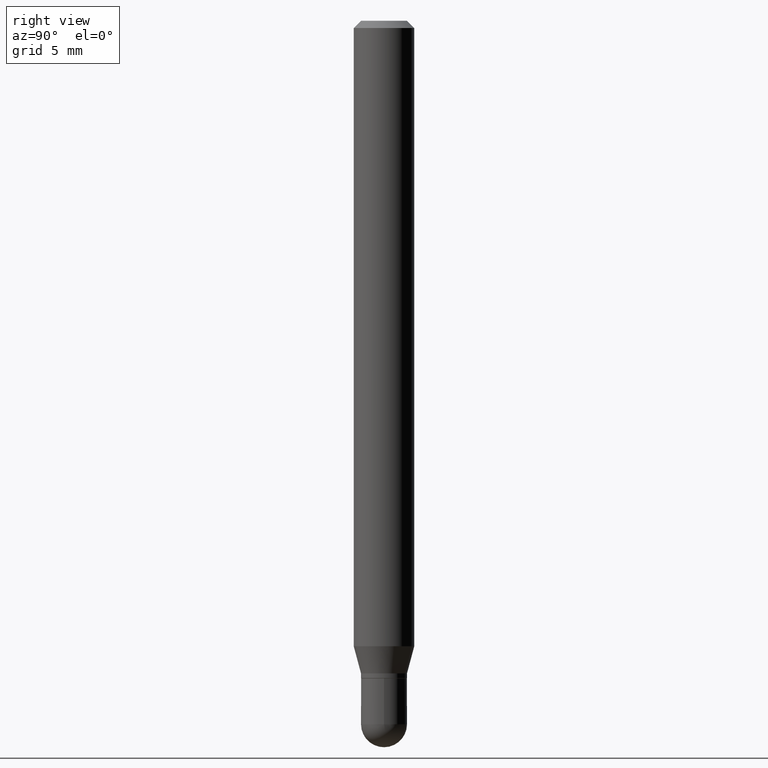
[diagram: clean part render]
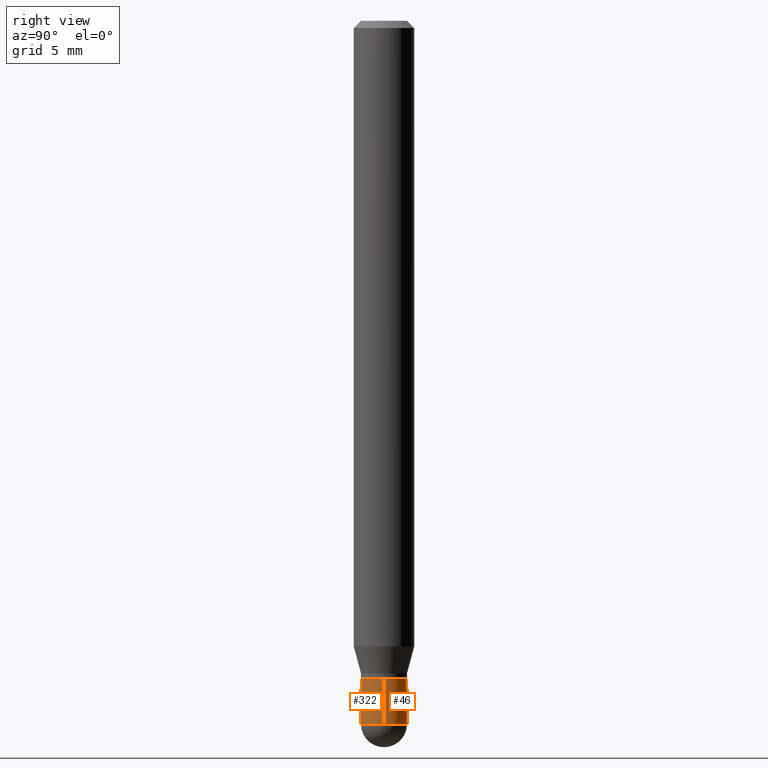
[diagram: same view with one multi-face feature highlighted, each face labeled with its STEP entity id]
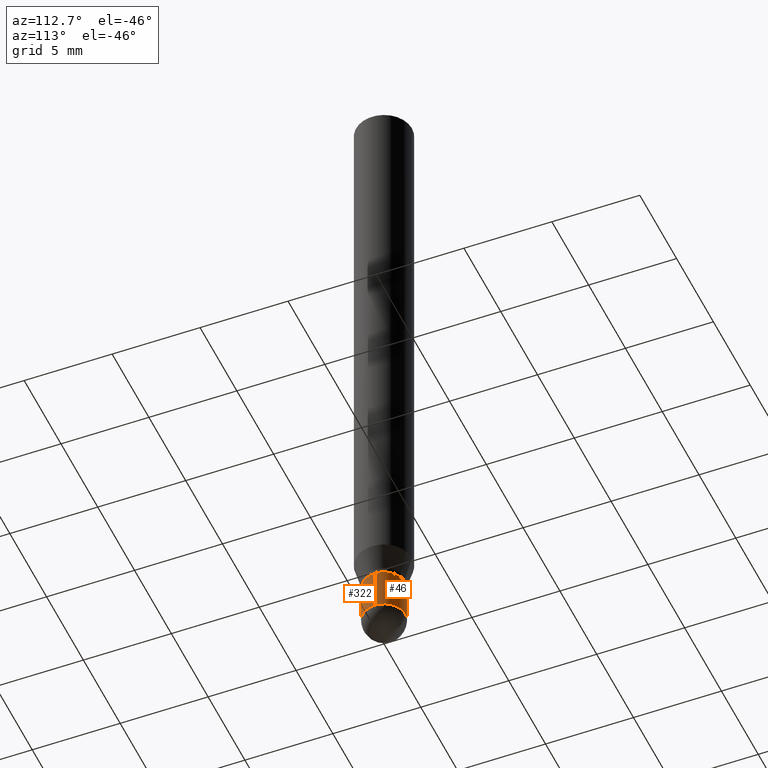
[diagram: same view with one multi-face feature highlighted, each face labeled with its STEP entity id]
A machine part, right view. The highlighted faces form ONE feature: a constant-radius fillet chain: 2 tangent blend faces with common blend radius 1.2065 mm. The faces share edges in the B-rep.
A second angle (auxiliary view) of the same feature is appended — it is thin or edge-on in the first view.
Their STEP definitions:
[1] entity #322 (Cylinder):
#7 = EDGE_CURVE ( 'NONE', #220, #444, #39, .T. ) ;
#9 = CARTESIAN_POINT ( 'NONE',  ( 3.552043440983912297E-29, -5.071376644669670605E-15, -1.452500000000000346 ) ) ;
#23 = VERTEX_POINT ( 'NONE', #147 ) ;
#24 = ORIENTED_EDGE ( 'NONE', *, *, #205, .T. ) ;
#25 = EDGE_CURVE ( 'NONE', #220, #465, #266, .T. ) ;
#31 = CARTESIAN_POINT ( 'NONE',  ( 0.04750000000000000749, -5.237222008264718177E-15, -1.452500000000000346 ) ) ;
#39 = CIRCLE ( 'NONE', #108, 0.04750000000000000749 ) ;
#47 = AXIS2_PLACEMENT_3D ( 'NONE', #9, #341, #188 ) ;
#58 = CARTESIAN_POINT ( 'NONE',  ( 0.04750000000000000749, -3.316907271900977082E-16, 2.316183968503069432E-30 ) ) ;
#78 = ORIENTED_EDGE ( 'NONE', *, *, #7, .T. ) ;
#85 = ORIENTED_EDGE ( 'NONE', *, *, #25, .F. ) ;
#93 = ORIENTED_EDGE ( 'NONE', *, *, #283, .T. ) ;
#97 = CARTESIAN_POINT ( 'NONE',  ( 3.319723904396323737E-29, -4.739685917479570727E-15, -1.357500000000000151 ) ) ;
#108 = AXIS2_PLACEMENT_3D ( 'NONE', #323, #466, #389 ) ;
#119 = CARTESIAN_POINT ( 'NONE',  ( 0.000000000000000000, 0.000000000000000000, 0.000000000000000000 ) ) ;
#144 = CARTESIAN_POINT ( 'NONE',  ( -0.04750000000000000749, 3.375077994860476415E-16, -2.336494167871080260E-30 ) ) ;
#147 = CARTESIAN_POINT ( 'NONE',  ( 0.04749999999999999362, -5.071376644669668238E-15, -1.357500000000000151 ) ) ;
#150 = AXIS2_PLACEMENT_3D ( 'NONE', #119, #512, #246 ) ;
#181 = AXIS2_PLACEMENT_3D ( 'NONE', #97, #487, #256 ) ;
#188 = DIRECTION ( 'NONE',  ( 1.000000000000000000, -6.982962677686260400E-15, 0.000000000000000000 ) ) ;
#191 = EDGE_LOOP ( 'NONE', ( #85, #78, #93, #24, #486 ) ) ;
#205 = EDGE_CURVE ( 'NONE', #287, #23, #429, .T. ) ;
#220 = VERTEX_POINT ( 'NONE', #224 ) ;
#224 = CARTESIAN_POINT ( 'NONE',  ( -0.04750000000000000749, -4.568023481588573961E-15, -1.452500000000000346 ) ) ;
#241 = CIRCLE ( 'NONE', #181, 0.04749999999999999362 ) ;
#246 = DIRECTION ( 'NONE',  ( 1.000000000000000000, -6.982962677686266711E-15, 4.876176775795934672E-29 ) ) ;
#256 = DIRECTION ( 'NONE',  ( 1.000000000000000000, -6.982962677686261977E-15, 0.000000000000000000 ) ) ;
#257 = CARTESIAN_POINT ( 'NONE',  ( -0.04749999999999999362, -4.568023481588573961E-15, -1.357500000000000151 ) ) ;
#266 = LINE ( 'NONE', #144, #416 ) ;
#281 = DIRECTION ( 'NONE',  ( -2.445468806185136877E-29, 3.491481338843145188E-15, 1.000000000000000000 ) ) ;
#283 = EDGE_CURVE ( 'NONE', #444, #287, #364, .T. ) ;
#287 = VERTEX_POINT ( 'NONE', #31 ) ;
#296 = VECTOR ( 'NONE', #498, 39.37007874015748143 ) ;
#322 = ADVANCED_FACE ( 'NONE', ( #442 ), #362, .T. ) ;
#323 = CARTESIAN_POINT ( 'NONE',  ( 3.552043440983912297E-29, -5.071376644669670605E-15, -1.452500000000000346 ) ) ;
#341 = DIRECTION ( 'NONE',  ( -2.445468806185136597E-29, 3.491481338843145583E-15, 1.000000000000000000 ) ) ;
#362 = CYLINDRICAL_SURFACE ( 'NONE', #150, 0.04750000000000000749 ) ;
#364 = CIRCLE ( 'NONE', #47, 0.04750000000000000749 ) ;
#366 = EDGE_CURVE ( 'NONE', #465, #23, #241, .T. ) ;
#389 = DIRECTION ( 'NONE',  ( 1.000000000000000000, -6.982962677686260400E-15, 0.000000000000000000 ) ) ;
#416 = VECTOR ( 'NONE', #281, 39.37007874015748143 ) ;
#429 = LINE ( 'NONE', #58, #296 ) ;
#442 = FACE_OUTER_BOUND ( 'NONE', #191, .T. ) ;
#444 = VERTEX_POINT ( 'NONE', #482 ) ;
#465 = VERTEX_POINT ( 'NONE', #257 ) ;
#466 = DIRECTION ( 'NONE',  ( -2.445468806185136597E-29, 3.491481338843145583E-15, 1.000000000000000000 ) ) ;
#482 = CARTESIAN_POINT ( 'NONE',  ( -3.316907271900626039E-16, -0.04750000000000514228, -1.452500000000000124 ) ) ;
#486 = ORIENTED_EDGE ( 'NONE', *, *, #366, .F. ) ;
#487 = DIRECTION ( 'NONE',  ( -2.445468806185136597E-29, 3.491481338843145583E-15, 1.000000000000000000 ) ) ;
#498 = DIRECTION ( 'NONE',  ( -2.445468806185136877E-29, 3.491481338843145188E-15, 1.000000000000000000 ) ) ;
#512 = DIRECTION ( 'NONE',  ( -2.445468806185136597E-29, 3.491481338843145583E-15, 1.000000000000000000 ) ) ;
[2] entity #46 (Cylinder):
#18 = VERTEX_POINT ( 'NONE', #102 ) ;
#20 = AXIS2_PLACEMENT_3D ( 'NONE', #221, #213, #100 ) ;
#23 = VERTEX_POINT ( 'NONE', #147 ) ;
#25 = EDGE_CURVE ( 'NONE', #220, #465, #266, .T. ) ;
#27 = EDGE_LOOP ( 'NONE', ( #387, #505, #377, #357, #467 ) ) ;
#31 = CARTESIAN_POINT ( 'NONE',  ( 0.04750000000000000749, -5.237222008264718177E-15, -1.452500000000000346 ) ) ;
#32 = AXIS2_PLACEMENT_3D ( 'NONE', #232, #398, #428 ) ;
#46 = ADVANCED_FACE ( 'NONE', ( #500 ), #433, .T. ) ;
#52 = DIRECTION ( 'NONE',  ( -2.445468806185136597E-29, 3.491481338843145583E-15, 1.000000000000000000 ) ) ;
#53 = EDGE_CURVE ( 'NONE', #23, #465, #234, .T. ) ;
#58 = CARTESIAN_POINT ( 'NONE',  ( 0.04750000000000000749, -3.316907271900977082E-16, 2.316183968503069432E-30 ) ) ;
#67 = DIRECTION ( 'NONE',  ( 1.000000000000000000, -6.982962677686266711E-15, 4.876176775795934672E-29 ) ) ;
#100 = DIRECTION ( 'NONE',  ( 1.000000000000000000, -6.982962677686260400E-15, 0.000000000000000000 ) ) ;
#102 = CARTESIAN_POINT ( 'NONE',  ( 3.375077994860835347E-16, 0.04749999999999498373, -1.452500000000000790 ) ) ;
#106 = CARTESIAN_POINT ( 'NONE',  ( 0.000000000000000000, 0.000000000000000000, 0.000000000000000000 ) ) ;
#144 = CARTESIAN_POINT ( 'NONE',  ( -0.04750000000000000749, 3.375077994860476415E-16, -2.336494167871080260E-30 ) ) ;
#147 = CARTESIAN_POINT ( 'NONE',  ( 0.04749999999999999362, -5.071376644669668238E-15, -1.357500000000000151 ) ) ;
#182 = CARTESIAN_POINT ( 'NONE',  ( 3.552043440983912297E-29, -5.071376644669670605E-15, -1.452500000000000346 ) ) ;
#205 = EDGE_CURVE ( 'NONE', #287, #23, #429, .T. ) ;
#213 = DIRECTION ( 'NONE',  ( -2.445468806185136597E-29, 3.491481338843145583E-15, 1.000000000000000000 ) ) ;
#220 = VERTEX_POINT ( 'NONE', #224 ) ;
#221 = CARTESIAN_POINT ( 'NONE',  ( 3.552043440983912297E-29, -5.071376644669670605E-15, -1.452500000000000346 ) ) ;
#224 = CARTESIAN_POINT ( 'NONE',  ( -0.04750000000000000749, -4.568023481588573961E-15, -1.452500000000000346 ) ) ;
#232 = CARTESIAN_POINT ( 'NONE',  ( 3.319723904396323737E-29, -4.739685917479570727E-15, -1.357500000000000151 ) ) ;
#234 = CIRCLE ( 'NONE', #32, 0.04749999999999999362 ) ;
#249 = CIRCLE ( 'NONE', #20, 0.04750000000000000749 ) ;
#257 = CARTESIAN_POINT ( 'NONE',  ( -0.04749999999999999362, -4.568023481588573961E-15, -1.357500000000000151 ) ) ;
#266 = LINE ( 'NONE', #144, #416 ) ;
#281 = DIRECTION ( 'NONE',  ( -2.445468806185136877E-29, 3.491481338843145188E-15, 1.000000000000000000 ) ) ;
#287 = VERTEX_POINT ( 'NONE', #31 ) ;
#296 = VECTOR ( 'NONE', #498, 39.37007874015748143 ) ;
#357 = ORIENTED_EDGE ( 'NONE', *, *, #205, .F. ) ;
#377 = ORIENTED_EDGE ( 'NONE', *, *, #53, .F. ) ;
#380 = EDGE_CURVE ( 'NONE', #18, #220, #249, .T. ) ;
#386 = DIRECTION ( 'NONE',  ( 1.000000000000000000, -6.982962677686260400E-15, 0.000000000000000000 ) ) ;
#387 = ORIENTED_EDGE ( 'NONE', *, *, #380, .T. ) ;
#398 = DIRECTION ( 'NONE',  ( -2.445468806185136597E-29, 3.491481338843145583E-15, 1.000000000000000000 ) ) ;
#410 = AXIS2_PLACEMENT_3D ( 'NONE', #182, #52, #386 ) ;
#416 = VECTOR ( 'NONE', #281, 39.37007874015748143 ) ;
#428 = DIRECTION ( 'NONE',  ( 1.000000000000000000, -6.982962677686261977E-15, 0.000000000000000000 ) ) ;
#429 = LINE ( 'NONE', #58, #296 ) ;
#433 = CYLINDRICAL_SURFACE ( 'NONE', #450, 0.04750000000000000749 ) ;
#440 = CIRCLE ( 'NONE', #410, 0.04750000000000000749 ) ;
#450 = AXIS2_PLACEMENT_3D ( 'NONE', #106, #494, #67 ) ;
#465 = VERTEX_POINT ( 'NONE', #257 ) ;
#467 = ORIENTED_EDGE ( 'NONE', *, *, #471, .T. ) ;
#471 = EDGE_CURVE ( 'NONE', #287, #18, #440, .T. ) ;
#494 = DIRECTION ( 'NONE',  ( -2.445468806185136597E-29, 3.491481338843145583E-15, 1.000000000000000000 ) ) ;
#498 = DIRECTION ( 'NONE',  ( -2.445468806185136877E-29, 3.491481338843145188E-15, 1.000000000000000000 ) ) ;
#500 = FACE_OUTER_BOUND ( 'NONE', #27, .T. ) ;
#505 = ORIENTED_EDGE ( 'NONE', *, *, #25, .T. ) ;